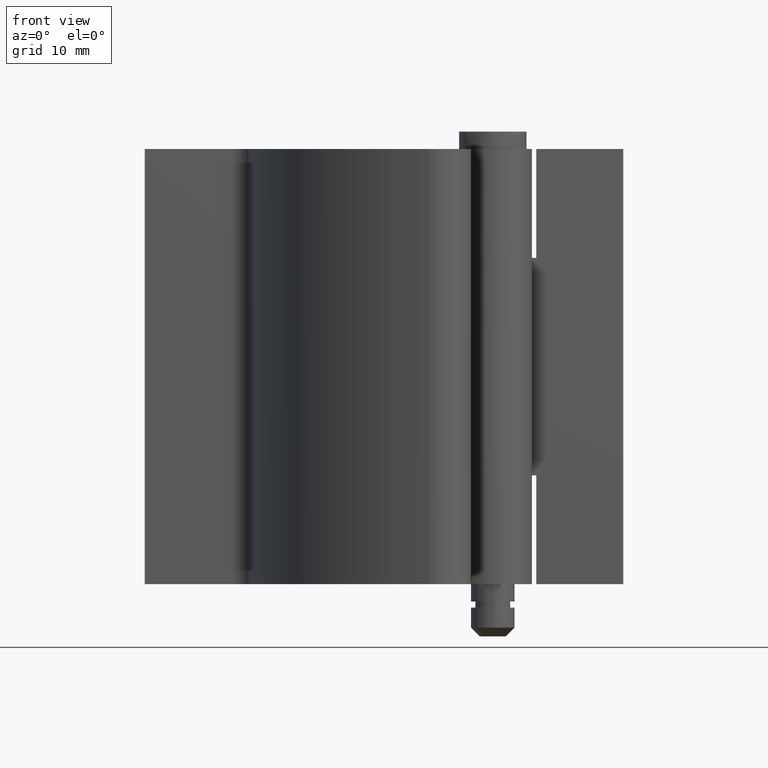
[diagram: clean part render]
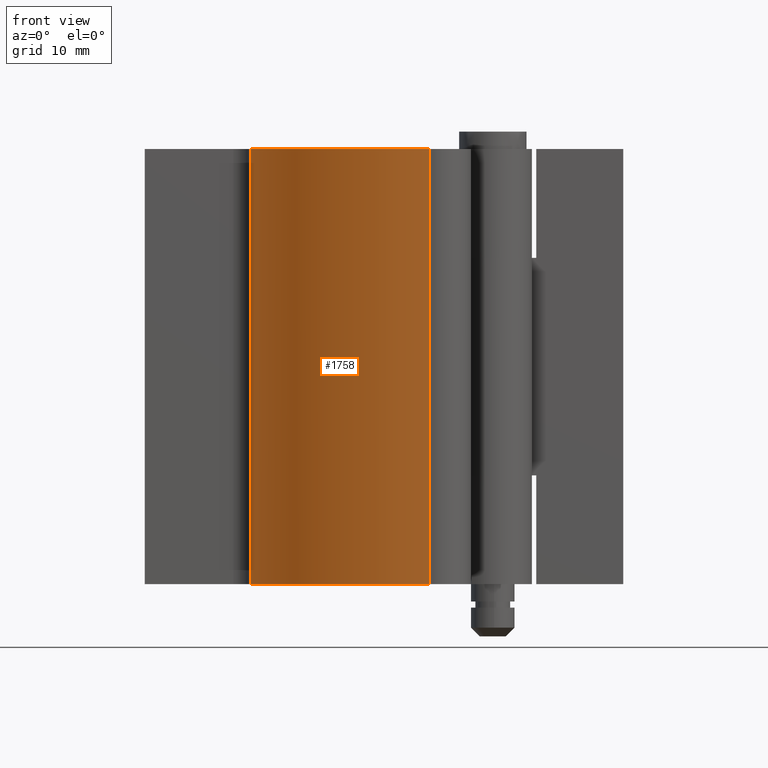
[diagram: same view with one face highlighted and labeled with its STEP entity id]
A machine part, front view. The second image highlights one B-rep face of the part: STEP entity #1758.
In plain terms, the highlighted face is a freeform B-spline surface patch.
Its self-contained STEP definition (entity closure, byte-faithful):
#1292=CARTESIAN_POINT('',(-7.309824726369710,-21.417161948756899,6.0));
#1293=VERTEX_POINT('',#1292);
#1309=CARTESIAN_POINT('',(-27.836752632129599,0.753171255150635,6.0));
#1310=VERTEX_POINT('',#1309);
#1311=CARTESIAN_POINT('',(-7.309824726369710,-21.417161948756899,6.0));
#1312=CARTESIAN_POINT('',(-25.487107615552773,-17.659189609035479,6.0));
#1313=CARTESIAN_POINT('',(-27.836752632129599,0.753171255150635,6.0));
#1321=(BOUNDED_CURVE()B_SPLINE_CURVE(2,(#1311,#1312,#1313),.UNSPECIFIED.,.F.,.U.)CURVE()GEOMETRIC_REPRESENTATION_ITEM()QUASI_UNIFORM_CURVE()RATIONAL_B_SPLINE_CURVE((1.0,0.813877818215040,1.0))REPRESENTATION_ITEM(''));
#1322=EDGE_CURVE('',#1293,#1310,#1321,.T.);
#1382=CARTESIAN_POINT('',(-27.836752632129599,0.753171255150635,56.0));
#1383=VERTEX_POINT('',#1382);
#1397=CARTESIAN_POINT('',(-7.309824726369710,-21.417161948756899,56.0));
#1398=VERTEX_POINT('',#1397);
#1399=CARTESIAN_POINT('',(-7.309824726369710,-21.417161948756899,56.0));
#1400=CARTESIAN_POINT('',(-25.487107615552773,-17.659189609035479,55.999999999999993));
#1401=CARTESIAN_POINT('',(-27.836752632129599,0.753171255150635,56.0));
#1409=(BOUNDED_CURVE()B_SPLINE_CURVE(2,(#1399,#1400,#1401),.UNSPECIFIED.,.F.,.U.)CURVE()GEOMETRIC_REPRESENTATION_ITEM()QUASI_UNIFORM_CURVE()RATIONAL_B_SPLINE_CURVE((1.0,0.813877818215040,1.0))REPRESENTATION_ITEM(''));
#1410=EDGE_CURVE('',#1398,#1383,#1409,.T.);
#1726=CARTESIAN_POINT('',(-7.309824726369710,-21.417161948756899,56.0));
#1727=CARTESIAN_POINT('',(-7.309824726369710,-21.417161948756899,6.0));
#1728=QUASI_UNIFORM_CURVE('',1,(#1726,#1727),.UNSPECIFIED.,.F.,.U.);
#1729=EDGE_CURVE('',#1398,#1293,#1728,.T.);
#1734=CARTESIAN_POINT('',(-27.864485669442189,0.978362080374435,57.250000000000007));
#1735=CARTESIAN_POINT('',(-27.864485669442189,0.978362080374435,4.718749999999993));
#1736=CARTESIAN_POINT('',(-25.517374825852823,-18.786267741956642,57.250000000000000));
#1737=CARTESIAN_POINT('',(-25.517374825852823,-18.786267741956642,4.718749999999993));
#1738=CARTESIAN_POINT('',(-5.825269224956204,-21.679449092824584,57.250000000000000));
#1739=CARTESIAN_POINT('',(-5.825269224956204,-21.679449092824584,4.718749999999993));
#1747=(BOUNDED_SURFACE()B_SPLINE_SURFACE(1,2,((#1734,#1736,#1738),(#1735,#1737,#1739)),.UNSPECIFIED.,.F.,.F.,.U.)B_SPLINE_SURFACE_WITH_KNOTS((2,2),(3,3),(0.0,52.531250000000007),(0.0,35.237219626450162),.UNSPECIFIED.)GEOMETRIC_REPRESENTATION_ITEM()RATIONAL_B_SPLINE_SURFACE(((1.0,0.793739722926891,0.999228679625416),(1.0,0.793739722926891,0.999228679625416)))REPRESENTATION_ITEM('')SURFACE());
#1748=ORIENTED_EDGE('',*,*,#1322,.F.);
#1749=ORIENTED_EDGE('',*,*,#1729,.F.);
#1750=ORIENTED_EDGE('',*,*,#1410,.T.);
#1751=CARTESIAN_POINT('',(-27.836752632129599,0.753171255150635,56.0));
#1752=CARTESIAN_POINT('',(-27.836752632129599,0.753171255150635,6.0));
#1753=QUASI_UNIFORM_CURVE('',1,(#1751,#1752),.UNSPECIFIED.,.F.,.U.);
#1754=EDGE_CURVE('',#1383,#1310,#1753,.T.);
#1755=ORIENTED_EDGE('',*,*,#1754,.T.);
#1756=EDGE_LOOP('',(#1748,#1749,#1750,#1755));
#1757=FACE_OUTER_BOUND('',#1756,.T.);
#1758=ADVANCED_FACE('',(#1757),#1747,.T.);